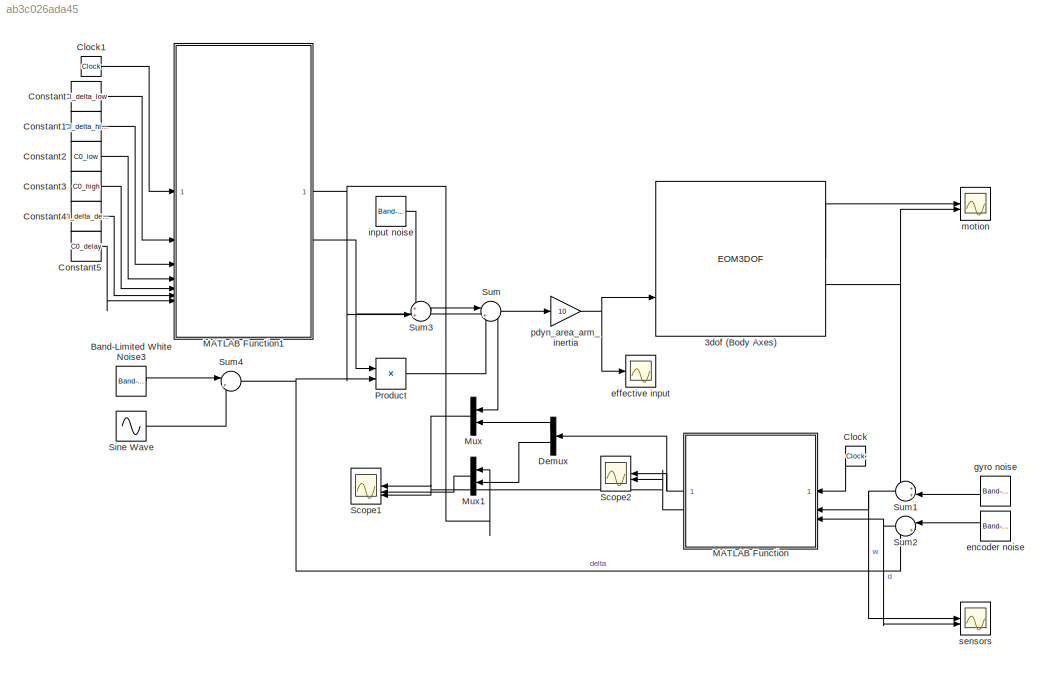
MODEL slx_ab3c026ada45
KIND model
CONFIG AbsTol = auto
CONFIG EnableMultiTasking = off
CONFIG FixedStep = auto
CONFIG InitFcn = rng('shuffle')\nCl_delta_low = 0.5;\nCl_delta_high = 2.5;\nC0_mean = 0.1;\nC0_bound = 0;\nC0_low = C0_mean - C0_bound;\nC0_high = C0_mean + C0_bound;\nCl_delta_delay = 0.6;\nC0_delay = 0.3;\n
CONFIG MaxStep = auto
CONFIG MinStep = auto
CONFIG RelTol = 1e-3
CONFIG SampleTimeConstraint = Unconstrained
CONFIG SolverName = VariableStepAuto
CONFIG StartTime = 0.0
CONFIG StopTime = 40
BLOCK [EOM3DOF] 3dof (Body Axes)
BLOCK [Reference] Band-Limited White Noise3  REF=simulink/Sources/Band-Limited
White Noise
  SourceBlock = simulink/Sources/Band-Limited\nWhite Noise
  SourceType = Band-Limited White Noise.
BLOCK [Clock] Clock
  NameLocation = top
BLOCK [Clock] Clock1
BLOCK [Constant] Constant
  Value = Cl_delta_low
BLOCK [Constant] Constant1
  Value = Cl_delta_high
BLOCK [Constant] Constant2
  Value = C0_low
BLOCK [Constant] Constant3
  Value = C0_high
BLOCK [Constant] Constant4
  Value = Cl_delta_delay
BLOCK [Constant] Constant5
  Value = C0_delay
BLOCK [Demux] Demux
  NameLocation = top
  Outputs = 2
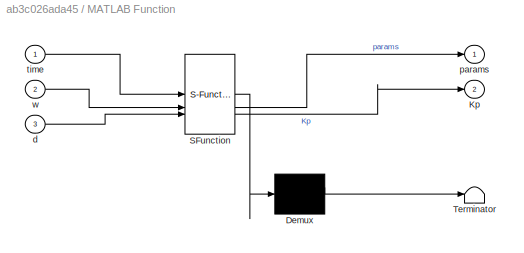
BLOCK [SubSystem] MATLAB Function
  ErrorFcn = Stateflow.Translate.translate
  NameLocation = top
  PermitHierarchicalResolution = ExplicitOnly
  SFBlockType = MATLAB Function
  TreatAsAtomicUnit = on
BLOCK [Demux] MATLAB Function/ Demux 
  Outputs = 1
BLOCK [S-Function] MATLAB Function/ SFunction 
  EnableBusSupport = off
  FunctionName = sf_sfun
  PortCounts = [3 3]
  SFcnIsStateOwnerBlock = off
  SFunctionDeploymentMode = off
  Tag = Stateflow S-Function 2
BLOCK [Terminator] MATLAB Function/ Terminator 
BLOCK [Outport] MATLAB Function/Kp
  Port = 2
BLOCK [Inport] MATLAB Function/d
  Port = 3
BLOCK [Outport] MATLAB Function/params
BLOCK [Inport] MATLAB Function/time
BLOCK [Inport] MATLAB Function/w
  Port = 2
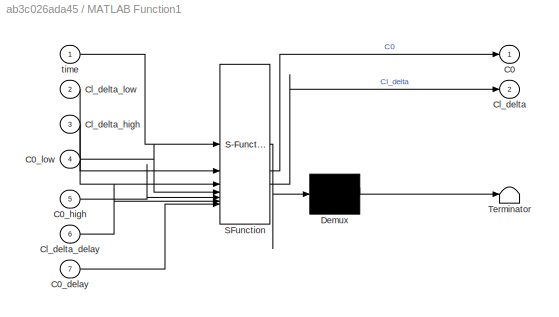
BLOCK [SubSystem] MATLAB Function1
  ErrorFcn = Stateflow.Translate.translate
  PermitHierarchicalResolution = ExplicitOnly
  SFBlockType = MATLAB Function
  SystemSampleTime = 0.01
  TreatAsAtomicUnit = on
BLOCK [Demux] MATLAB Function1/ Demux 
  Outputs = 1
BLOCK [S-Function] MATLAB Function1/ SFunction 
  EnableBusSupport = off
  FunctionName = sf_sfun
  PortCounts = [7 3]
  SFcnIsStateOwnerBlock = off
  SFunctionDeploymentMode = off
  Tag = Stateflow S-Function 1
BLOCK [Terminator] MATLAB Function1/ Terminator 
BLOCK [Outport] MATLAB Function1/C0
BLOCK [Inport] MATLAB Function1/C0_delay
  Port = 7
BLOCK [Inport] MATLAB Function1/C0_high
  Port = 5
BLOCK [Inport] MATLAB Function1/C0_low
  Port = 4
BLOCK [Outport] MATLAB Function1/Cl_delta
  Port = 2
BLOCK [Inport] MATLAB Function1/Cl_delta_delay
  Port = 6
BLOCK [Inport] MATLAB Function1/Cl_delta_high
  Port = 3
BLOCK [Inport] MATLAB Function1/Cl_delta_low
  Port = 2
BLOCK [Inport] MATLAB Function1/time
BLOCK [Mux] Mux
  DisplayOption = bar
  Inputs = 2
  NameLocation = top
BLOCK [Mux] Mux1
  DisplayOption = bar
  Inputs = 2
  NameLocation = top
BLOCK [Product] Product
BLOCK [Scope] Scope1
  ActiveDisplayYMaximum = 2.9496487877000455
  ActiveDisplayYMinimum = 0.0078190731743709163
  ContainerLayout = {"WindowBounds":[-7,-7,1550,830],"gridDimensions":{"w":1,"h":1},"tileCount":1,"tileCoverage":1,"columnWeights":1,"rowWeights":1,"tileOccupancy":{"children":[{"id":"/Scope1"},{"id":"/effective input"}]}}
  DataLoggingVariableName = ScopeData4
  DisplayFullPath = on
  Floating = off
  GraphicalSettings = {"Style":{"BackgroundColor":[0.12941176470588237,0.12941176470588237,0.12941176470588237],"AxesColor":[0.07058823529411765,0.07058823529411765,0.07058823529411765],"LabelsColor":[0.8509803921568627,0.8509803921568627,0.8509803921568627],"PreserveColors":false,"Visible":[true,true,true,true,true,true],"LineStyle":["-","-","-","-","-","-"],"LineWidth":[1.5,1.5,1.5,1.5,1.5,1.5],"BarWidth":[0.9,0.9,0....<+3321ch>
  LayoutDimensionsString = [3,1]
  MultipleDisplayCache = [{"MaxYLimMag":2.9496487877000455,"MaxYLimReal":2.9496487877000455,"MinYLimMag":0.0078190731743709163,"MinYLimReal":0.0078190731743709163,"PlotAsMagnitudePhase":false,"ShowGrid":true,"ShowLegend":true,"Title":"%<SignalLabel>","YLabel":""},{"MaxYLimMag":0.14283273820809111,"MaxYLimReal":0.14283273820809111,"MinYLimMag":0,"MinYLimReal":-0.01689760899244994,"PlotAsMagnitudePhase":false,"ShowGrid":tru...<+280ch>
  NameLocation = top
  NumInputPorts = 3
  ScopeFrameLocation = container
  ShowLegend = on
  Visible = on
  WasSavedAsWebScope = on
  WindowPosition = [-7.000000,41.000000,1539.000000,830.000000,]
BLOCK [Scope] Scope2
  ActiveDisplayYMaximum = 1
  ActiveDisplayYMinimum = -1
  DataLoggingVariableName = ScopeData2
  Floating = off
  GraphicalSettings = {"Style":{"BackgroundColor":[0.12941176470588237,0.12941176470588237,0.12941176470588237],"AxesColor":[0.07058823529411765,0.07058823529411765,0.07058823529411765],"LabelsColor":[0.8509803921568627,0.8509803921568627,0.8509803921568627],"PreserveColors":false,"Visible":[true,true,true,true],"LineStyle":["-","-","-","-"],"LineWidth":[1.5,1.5,1.5,1.5],"BarWidth":[0.9,0.9,0.9,0.9],"LineColor":["auto"...<+2623ch>
  LayoutDimensionsString = [2,1]
  MultipleDisplayCache = [{"MaxYLimMag":1,"MaxYLimReal":1,"MinYLimMag":0,"MinYLimReal":-1,"PlotAsMagnitudePhase":false,"ShowGrid":true,"ShowLegend":true,"Title":"%<SignalLabel>","YLabel":""},{"MaxYLimMag":1,"MaxYLimReal":1,"MinYLimMag":0,"MinYLimReal":-1,"PlotAsMagnitudePhase":false,"ShowGrid":true,"ShowLegend":true,"Title":"%<SignalLabel>","YLabel":""}]
  NameLocation = top
  NumInputPorts = 2
  ScopeFrameLocation = window
  ShowLegend = on
  WasSavedAsWebScope = on
  WindowPosition = [0.000000,36.000000,1536.000000,793.000000,]
BLOCK [Sin] Sine Wave
  Frequency = 10
  Phase = pi/2
  SampleTime = 0
BLOCK [Sum] Sum
  Inputs = |++
BLOCK [Sum] Sum1
  Inputs = ++|
  NameLocation = top
BLOCK [Sum] Sum2
  Inputs = |++
  NameLocation = top
BLOCK [Sum] Sum3
  Inputs = ++|
BLOCK [Sum] Sum4
  Inputs = |++
BLOCK [Scope] effective input
  ActiveDisplayYMaximum = 113.50306593607439
  ActiveDisplayYMinimum = -109.33479965380702
  ContainerLayout = {"WindowBounds":[-7,-7,1550,830],"gridDimensions":{"w":1,"h":1},"tileCount":1,"tileCoverage":1,"columnWeights":1,"rowWeights":1,"tileOccupancy":{"children":[{"id":"/Scope1"},{"id":"/effective input"}]}}
  Floating = off
  GraphicalSettings = {"Style":{"BackgroundColor":[0.12941176470588237,0.12941176470588237,0.12941176470588237],"AxesColor":[0.07058823529411765,0.07058823529411765,0.07058823529411765],"LabelsColor":[0.8509803921568627,0.8509803921568627,0.8509803921568627],"PreserveColors":false,"Visible":[true],"LineStyle":["-"],"LineWidth":[1.5],"BarWidth":[0.9],"LineColor":["auto"],"LineFaceAlpha":[1],"LineEdgeAlpha":[1],"Marker":...<+2027ch>
  MultipleDisplayCache = [{"MaxYLimMag":113.50306593607439,"MaxYLimReal":113.50306593607439,"MinYLimMag":0,"MinYLimReal":-109.33479965380702,"PlotAsMagnitudePhase":false,"ShowGrid":true,"ShowLegend":false,"Title":"%<SignalLabel>","YLabel":""}]
  NumInputPorts = 1
  ScopeFrameLocation = container
  Visible = on
  WasSavedAsWebScope = on
  WindowPosition = [-7.000000,41.000000,1539.000000,830.000000,]
BLOCK [Reference] encoder noise  REF=simulink/Sources/Band-Limited
White Noise
  SourceBlock = simulink/Sources/Band-Limited\nWhite Noise
  SourceType = Band-Limited White Noise.
BLOCK [Reference] gyro noise  REF=simulink/Sources/Band-Limited
White Noise
  NameLocation = top
  SourceBlock = simulink/Sources/Band-Limited\nWhite Noise
  SourceType = Band-Limited White Noise.
BLOCK [Reference] input noise  REF=simulink/Sources/Band-Limited
White Noise
  SourceBlock = simulink/Sources/Band-Limited\nWhite Noise
  SourceType = Band-Limited White Noise.
BLOCK [Scope] motion
  ActiveDisplayYMaximum = 3.9237328145742758
  ActiveDisplayYMinimum = -3.9240694878775417
  DataLoggingVariableName = ScopeData1
  Floating = off
  GraphicalSettings = {"Style":{"BackgroundColor":[0.12941176470588237,0.12941176470588237,0.12941176470588237],"AxesColor":[0.07058823529411765,0.07058823529411765,0.07058823529411765],"LabelsColor":[0.8509803921568627,0.8509803921568627,0.8509803921568627],"PreserveColors":false,"Visible":[true,true],"LineStyle":["-","-"],"LineWidth":[1.5,1.5],"BarWidth":[0.9,0.9],"LineColor":["auto","auto"],"LineFaceAlpha":[1,1],"Li...<+2466ch>
  LayoutDimensionsString = [2,1]
  MultipleDisplayCache = [{"MaxYLimMag":3.9240694878775417,"MaxYLimReal":3.9237328145742758,"MinYLimMag":0,"MinYLimReal":-3.9240694878775417,"PlotAsMagnitudePhase":false,"ShowGrid":true,"ShowLegend":true,"Title":"%<SignalLabel>","YLabel":""},{"MaxYLimMag":28.713003032054409,"MaxYLimReal":28.713003032054409,"MinYLimMag":0,"MinYLimReal":-6.3147500728711385,"PlotAsMagnitudePhase":false,"ShowGrid":true,"ShowLegend":true,"Titl...<+33ch>
  NumInputPorts = 2
  ScopeFrameLocation = window
  ShowLegend = on
  WasSavedAsWebScope = on
  WindowPosition = [0.000000,36.000000,1536.000000,793.000000,]
BLOCK [Gain] pdyn_area_arm_inertia
  Gain = 10
BLOCK [Scope] sensors
  ActiveDisplayYMaximum = 0.046913425503183052
  ActiveDisplayYMinimum = -0.021581740856872682
  DataLoggingVariableName = ScopeData3
  Floating = off
  GraphicalSettings = {"Style":{"BackgroundColor":[0.12941176470588237,0.12941176470588237,0.12941176470588237],"AxesColor":[0.07058823529411765,0.07058823529411765,0.07058823529411765],"LabelsColor":[0.8509803921568627,0.8509803921568627,0.8509803921568627],"PreserveColors":false,"Visible":[true,true],"LineStyle":["-","-"],"LineWidth":[1.5,1.5],"BarWidth":[0.9,0.9],"LineColor":["auto","auto"],"LineFaceAlpha":[1,1],"Li...<+2415ch>
  LayoutDimensionsString = [2,1]
  MultipleDisplayCache = [{"MaxYLimMag":0.046913425503183052,"MaxYLimReal":0.046913425503183052,"MinYLimMag":0,"MinYLimReal":-0.021581740856872682,"PlotAsMagnitudePhase":false,"ShowGrid":true,"ShowLegend":true,"Title":"%<SignalLabel>","YLabel":""},{"MaxYLimMag":0.053565380022531722,"MaxYLimReal":0.039251852800406627,"MinYLimMag":0,"MinYLimReal":-0.053565380022531722,"PlotAsMagnitudePhase":false,"ShowGrid":true,"ShowLegend...<+45ch>
  NumInputPorts = 2
  ScopeFrameLocation = window
  ShowLegend = on
  WasSavedAsWebScope = on
  WindowPosition = [371.000000,174.000000,718.000000,447.000000,]
LINE 3dof (Body Axes):1 -> motion:1
NET 3dof (Body Axes):2 -> Sum1:1, motion:2
LINE Band-Limited White Noise3:1 -> Sum4:1
LINE Clock1:1 -> MATLAB Function1:1
LINE Clock:1 -> MATLAB Function:1
LINE Constant1:1 -> MATLAB Function1:3
LINE Constant2:1 -> MATLAB Function1:4
LINE Constant3:1 -> MATLAB Function1:5
LINE Constant4:1 -> MATLAB Function1:6
LINE Constant5:1 -> MATLAB Function1:7
LINE Constant:1 -> MATLAB Function1:2
LINE Demux:1 -> Mux:2
LINE Demux:2 -> Mux1:2
NET MATLAB Function1:1 -> Mux1:1, Sum3:2
NET MATLAB Function1:2 -> Mux:1, Product:1
NET MATLAB Function:1 -> Demux:1, Scope2:1
NET MATLAB Function:2 -> Scope1:3, Scope2:2
LINE Mux1:1 -> Scope1:2
LINE Mux:1 -> Scope1:1
LINE Product:1 -> Sum:2
LINE Sine Wave:1 -> Sum4:2
NET Sum1:1 -> MATLAB Function:2, sensors:1
NET Sum2:1 -> MATLAB Function:3, sensors:2
LINE Sum3:1 -> Sum:1
NET Sum4:1 -> Product:2, Sum2:2
LINE Sum:1 -> pdyn_area_arm_inertia:1
LINE encoder noise:1 -> Sum2:1
LINE gyro noise:1 -> Sum1:2
LINE input noise:1 -> Sum3:1
NET pdyn_area_arm_inertia:1 -> 3dof (Body Axes):3, effective input:1
note: NET lines group one-source signal fan-out (src -> all destinations, sorted); 1:1 wires keep LINE
CHART MATLAB Function1 states=1 transitions=1
  STATE_LABEL 'eML_blk_kernel()'
  STATE_LABEL 'SCRIPT:\nfunction [C0, Cl_delta] = coeffs(time, Cl_delta_low, Cl_delta_high, C0_low, C0_high, Cl_delta_delay, C0_delay)\n    t = time/40.0;\n    Cl_delta = Cl_delta_low + (Cl_delta_high - Cl_delta_low) / (1 + exp(-10*(t - Cl_delta_delay)));\n    C0 = C0_low + (C0_high - C0_low) / (1 + exp(-10*(t - C0_delay)));\nend\n'
CHART MATLAB Function states=1 transitions=1
  STATE_LABEL 'eML_blk_kernel()'
  STATE_LABEL 'SCRIPT:\nfunction [params, Kp] = processor(time, w, d)\n    % p : parameters\n    % r : regressors\n    % w : angular rate measurement\n    % d : canard angle measurement / command\n\n    pdyn_area_arm_inertia = 10; % everything in L except coefficients. match with gain in sim\n    if abs(d) < 0.01\n        d = 0;\n    end\n\n    [params, Kp] = param_estimator_kf(time, w, d, pdyn_area_arm_inertia);\n\nend\n'
CHART  states=0 transitions=0
CHART  states=0 transitions=0
